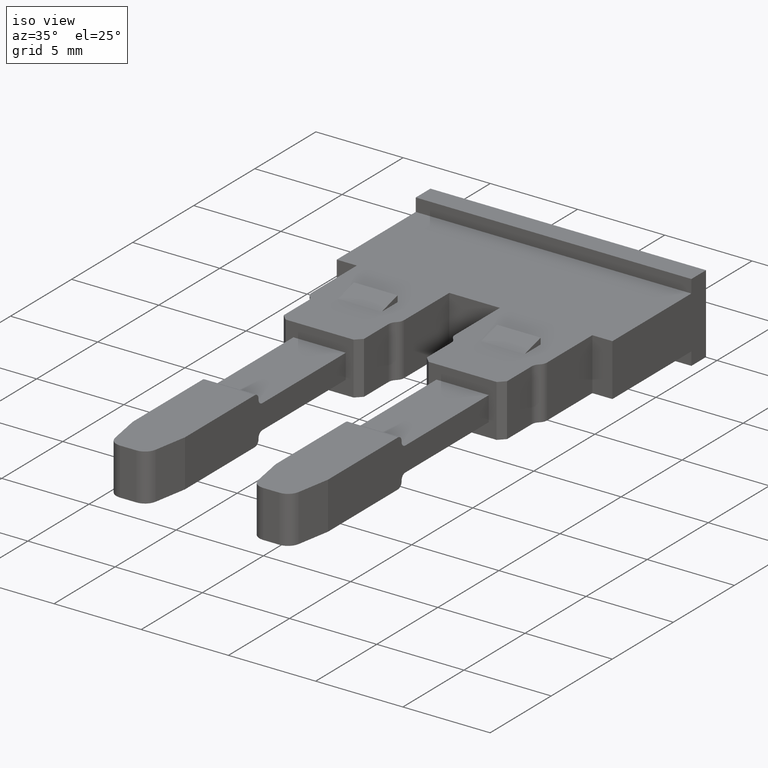
[diagram: clean part render]
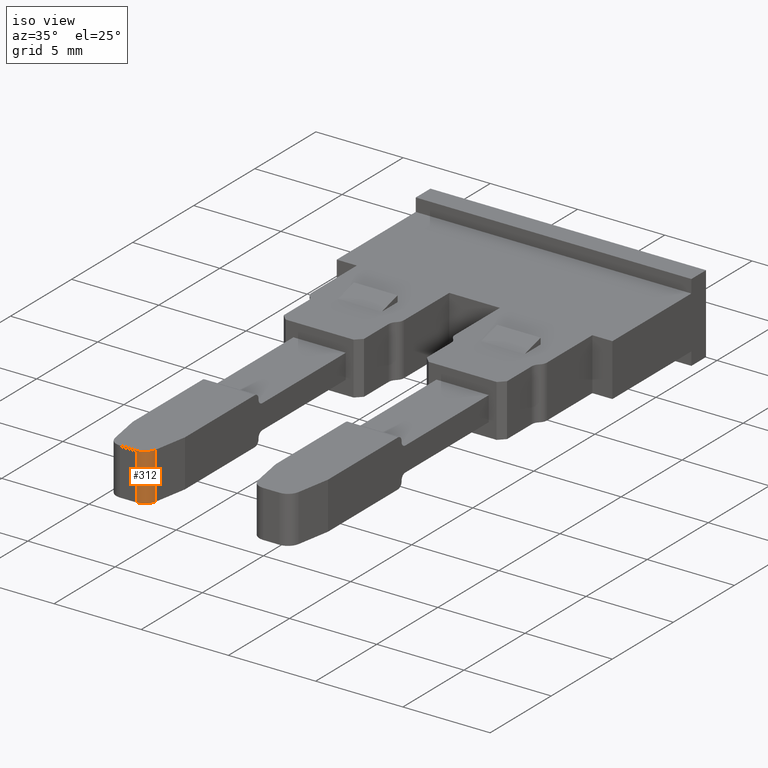
[diagram: same view with one face highlighted and labeled with its STEP entity id]
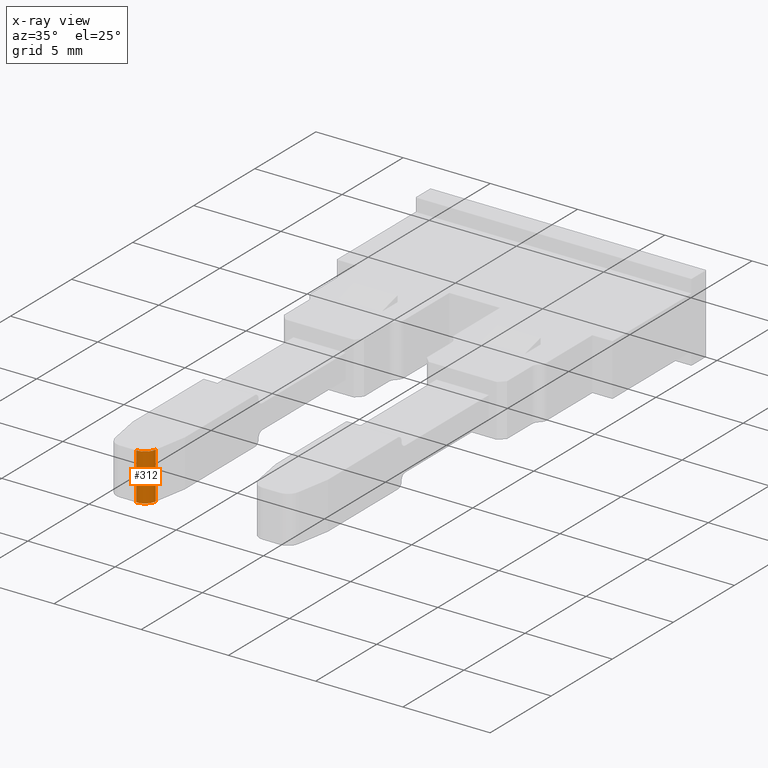
[diagram: x-ray of the same camera — body ghosted, the highlighted face saturated]
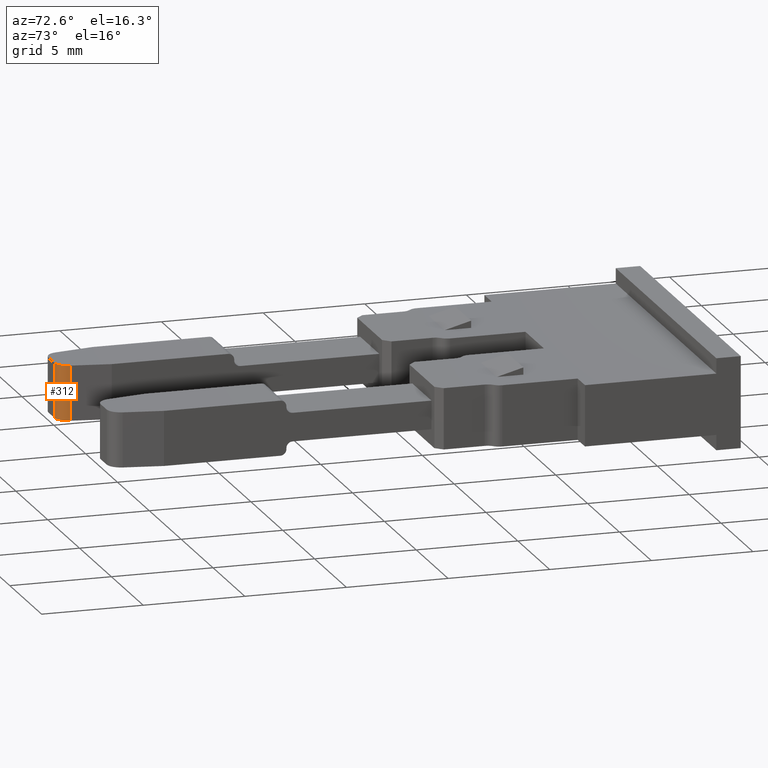
[diagram: same view with one face highlighted and labeled with its STEP entity id]
A machine part, iso view. The second image highlights one B-rep face of the part: STEP entity #312.
The next image is the same camera in x-ray: the body ghosted, the highlighted face saturated — about 0% of this face is hidden behind the body in this view.
A second angle (auxiliary view) of the same face is appended — the face is thin or edge-on in the first view.
In plain terms, the highlighted cylindrical surface (edge-blend (fillet) strip) has radius 0.7 mm, axis along (-0, -0, 1).
Its self-contained STEP definition (entity closure, byte-faithful):
#1 = EDGE_CURVE ( 'NONE', #2570, #2589, #1460, .T. ) ;
#4 = EDGE_CURVE ( 'NONE', #2604, #2570, #2789, .T. ) ;
#25 = EDGE_CURVE ( 'NONE', #2576, #2604, #1481, .T. ) ;
#52 = EDGE_CURVE ( 'NONE', #2589, #2576, #1983, .T. ) ;
#312 = ADVANCED_FACE ( 'NONE', ( #401 ), #424, .T. ) ;
#398 = CARTESIAN_POINT ( 'NONE',  ( 1143.466308848431900, 644.6455402684818000, -8.894767489098111200 ) ) ;
#401 = FACE_OUTER_BOUND ( 'NONE', #2492, .T. ) ;
#404 = DIRECTION ( 'NONE',  ( -5.364441115151317600E-014, -2.347622273454535600E-024, 1.000000000000000000 ) ) ;
#424 = CYLINDRICAL_SURFACE ( 'NONE', #1790, 0.7000000000001449500 ) ;
#429 = DIRECTION ( 'NONE',  ( 1.000000000000000000, 0.0000000000000000000, 5.451988067354550200E-014 ) ) ;
#505 = CARTESIAN_POINT ( 'NONE',  ( 1143.466308848431500, 643.9455402684817500, 0.1522013187406430500 ) ) ;
#523 = CARTESIAN_POINT ( 'NONE',  ( 1144.155674310466800, 644.5239867421933000, 0.1522013187406934000 ) ) ;
#531 = CARTESIAN_POINT ( 'NONE',  ( 1144.155674310466600, 644.5239867421933000, 2.847804784774984100 ) ) ;
#532 = CARTESIAN_POINT ( 'NONE',  ( 1143.466308848431300, 643.9455402684817500, 2.847804784774921500 ) ) ;
#1455 = VECTOR ( 'NONE', #2767, 1000.000000000000000 ) ;
#1460 = CIRCLE ( 'NONE', #1493, 0.7000000000001449500 ) ;
#1464 = AXIS2_PLACEMENT_3D ( 'NONE', #2827, #2814, #2828 ) ;
#1481 = CIRCLE ( 'NONE', #1464, 0.7000000000001449500 ) ;
#1493 = AXIS2_PLACEMENT_3D ( 'NONE', #2709, #2714, #2715 ) ;
#1534 = VECTOR ( 'NONE', #1996, 1000.000000000000000 ) ;
#1790 = AXIS2_PLACEMENT_3D ( 'NONE', #398, #404, #429 ) ;
#1973 = CARTESIAN_POINT ( 'NONE',  ( 1143.466308848431900, 643.9455402684816400, -8.894767489098111200 ) ) ;
#1983 = LINE ( 'NONE', #1973, #1534 ) ;
#1996 = DIRECTION ( 'NONE',  ( 5.364441115151317600E-014, 2.347622273454535600E-024, -1.000000000000000000 ) ) ;
#2014 = ORIENTED_EDGE ( 'NONE', *, *, #1, .T. ) ;
#2023 = ORIENTED_EDGE ( 'NONE', *, *, #4, .T. ) ;
#2042 = ORIENTED_EDGE ( 'NONE', *, *, #25, .T. ) ;
#2065 = ORIENTED_EDGE ( 'NONE', *, *, #52, .T. ) ;
#2492 = EDGE_LOOP ( 'NONE', ( #2014, #2065, #2042, #2023 ) ) ;
#2570 = VERTEX_POINT ( 'NONE', #531 ) ;
#2576 = VERTEX_POINT ( 'NONE', #505 ) ;
#2589 = VERTEX_POINT ( 'NONE', #532 ) ;
#2604 = VERTEX_POINT ( 'NONE', #523 ) ;
#2709 = CARTESIAN_POINT ( 'NONE',  ( 1143.466308848431300, 644.6455402684818000, 2.847804784774946800 ) ) ;
#2714 = DIRECTION ( 'NONE',  ( 5.364441115151317600E-014, 2.347622273454535600E-024, -1.000000000000000000 ) ) ;
#2715 = DIRECTION ( 'NONE',  ( 1.000000000000000000, 0.0000000000000000000, 5.390033657498248700E-014 ) ) ;
#2764 = CARTESIAN_POINT ( 'NONE',  ( 1144.155674310467200, 644.5239867421933000, -8.894767489098054400 ) ) ;
#2767 = DIRECTION ( 'NONE',  ( -5.202683949995306400E-014, 9.173720110939496500E-015, 1.000000000000000000 ) ) ;
#2789 = LINE ( 'NONE', #2764, #1455 ) ;
#2814 = DIRECTION ( 'NONE',  ( -5.364441115151317600E-014, -2.347622273454535600E-024, 1.000000000000000000 ) ) ;
#2827 = CARTESIAN_POINT ( 'NONE',  ( 1143.466308848431500, 644.6455402684818000, 0.1522013187406430500 ) ) ;
#2828 = DIRECTION ( 'NONE',  ( 1.000000000000000000, 0.0000000000000000000, 5.362928603186116800E-014 ) ) ;